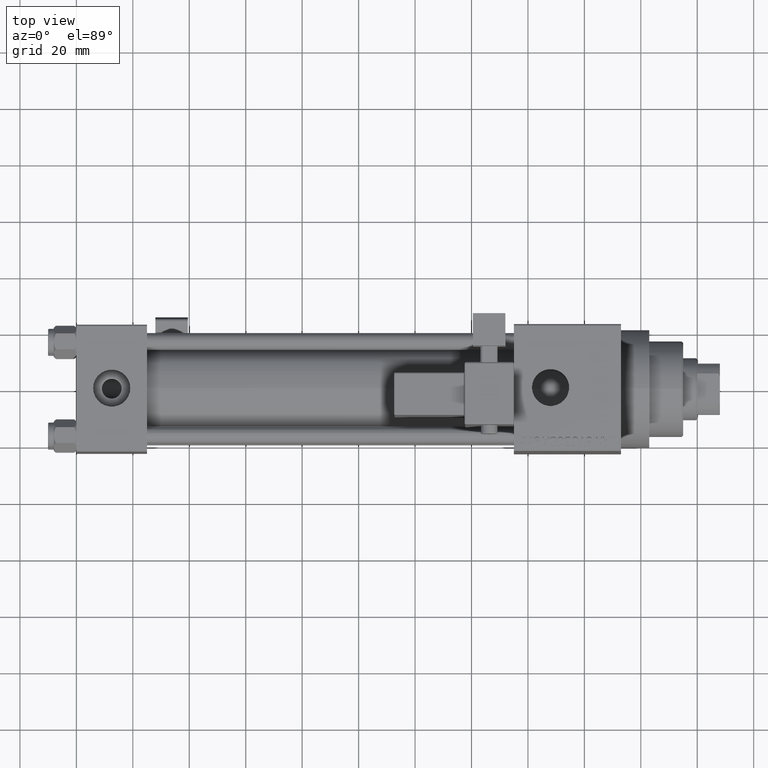
[diagram: clean part render]
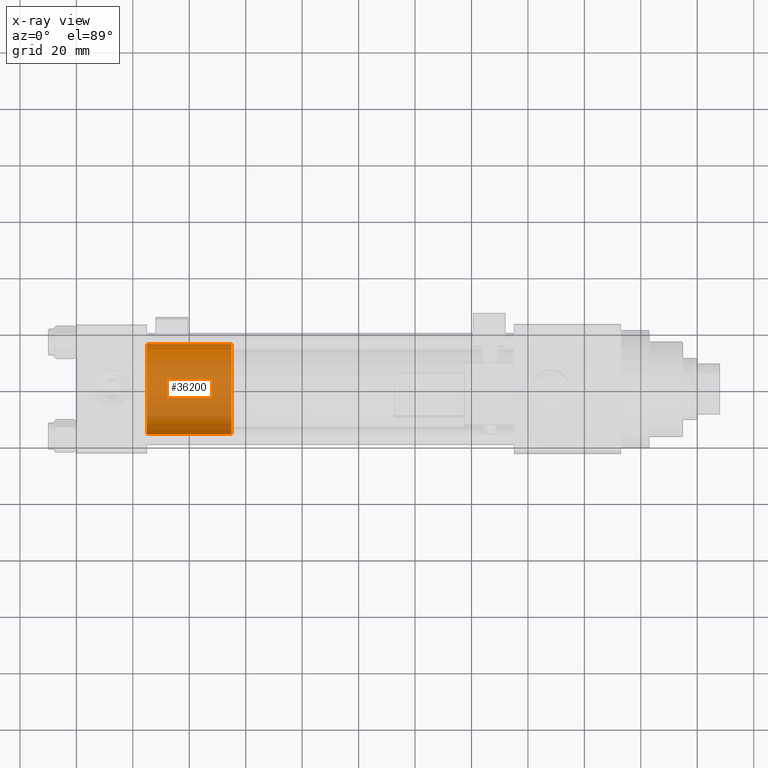
[diagram: x-ray — body ghosted, one internal face saturated and labeled with its STEP entity id]
A machine part, top view, then the same camera in x-ray: the body is ghosted and one INTERNAL B-rep face — a face not visible from any outside direction — is saturated and labeled: STEP entity #36200.
In plain terms, the highlighted cylindrical surface (partial cylindrical patch) has radius 16 mm, axis along (-1, 0, 0).
Its self-contained STEP definition (entity closure, byte-faithful):
#1058 = EDGE_CURVE ( 'NONE', #42176, #14074, #26869, .T. ) ;
#2208 = ORIENTED_EDGE ( 'NONE', *, *, #3503, .T. ) ;
#2711 = CARTESIAN_POINT ( 'NONE',  ( 0.000000000000000000, 0.000000000000000000, 30.00000000000000000 ) ) ;
#3195 = DIRECTION ( 'NONE',  ( 1.000000000000000000, 0.000000000000000000, 0.000000000000000000 ) ) ;
#3503 = EDGE_CURVE ( 'NONE', #37855, #43540, #23887, .T. ) ;
#3663 = VECTOR ( 'NONE', #42149, 1000.000000000000000 ) ;
#6163 = ORIENTED_EDGE ( 'NONE', *, *, #1058, .F. ) ;
#8698 = EDGE_CURVE ( 'NONE', #43540, #14074, #11914, .T. ) ;
#10849 = CIRCLE ( 'NONE', #26003, 16.00000000000000000 ) ;
#11914 = CIRCLE ( 'NONE', #19853, 16.00000000000000000 ) ;
#14074 = VERTEX_POINT ( 'NONE', #16898 ) ;
#14988 = EDGE_LOOP ( 'NONE', ( #20008, #2208, #29254, #6163 ) ) ;
#16898 = CARTESIAN_POINT ( 'NONE',  ( -16.00000000000000000, 0.000000000000000000, 0.000000000000000000 ) ) ;
#16922 = DIRECTION ( 'NONE',  ( 0.000000000000000000, 0.000000000000000000, 1.000000000000000000 ) ) ;
#19468 = AXIS2_PLACEMENT_3D ( 'NONE', #41589, #26567, #30570 ) ;
#19853 = AXIS2_PLACEMENT_3D ( 'NONE', #35911, #16922, #32408 ) ;
#20008 = ORIENTED_EDGE ( 'NONE', *, *, #40789, .F. ) ;
#20137 = DIRECTION ( 'NONE',  ( -0.000000000000000000, -0.000000000000000000, -1.000000000000000000 ) ) ;
#23887 = LINE ( 'NONE', #39154, #42866 ) ;
#26003 = AXIS2_PLACEMENT_3D ( 'NONE', #2711, #41205, #3195 ) ;
#26321 = FACE_OUTER_BOUND ( 'NONE', #14988, .T. ) ;
#26567 = DIRECTION ( 'NONE',  ( -0.000000000000000000, -0.000000000000000000, -1.000000000000000000 ) ) ;
#26869 = LINE ( 'NONE', #37650, #3663 ) ;
#28561 = CARTESIAN_POINT ( 'NONE',  ( 16.00000000000000000, 1.959434878635765131E-15, 30.00000000000000000 ) ) ;
#29254 = ORIENTED_EDGE ( 'NONE', *, *, #8698, .T. ) ;
#30570 = DIRECTION ( 'NONE',  ( -1.000000000000000000, 0.000000000000000000, 0.000000000000000000 ) ) ;
#32408 = DIRECTION ( 'NONE',  ( 1.000000000000000000, 0.000000000000000000, 0.000000000000000000 ) ) ;
#35911 = CARTESIAN_POINT ( 'NONE',  ( 0.000000000000000000, 0.000000000000000000, 0.000000000000000000 ) ) ;
#36200 = ADVANCED_FACE ( 'NONE', ( #26321 ), #48852, .T. ) ;
#36921 = CARTESIAN_POINT ( 'NONE',  ( 16.00000000000000000, 1.959434878635765131E-15, 0.000000000000000000 ) ) ;
#37650 = CARTESIAN_POINT ( 'NONE',  ( -16.00000000000000000, 0.000000000000000000, 30.00000000000000000 ) ) ;
#37855 = VERTEX_POINT ( 'NONE', #28561 ) ;
#39154 = CARTESIAN_POINT ( 'NONE',  ( 16.00000000000000000, 1.959434878635765131E-15, 30.00000000000000000 ) ) ;
#40733 = CARTESIAN_POINT ( 'NONE',  ( -16.00000000000000000, 0.000000000000000000, 30.00000000000000000 ) ) ;
#40789 = EDGE_CURVE ( 'NONE', #37855, #42176, #10849, .T. ) ;
#41205 = DIRECTION ( 'NONE',  ( 0.000000000000000000, 0.000000000000000000, 1.000000000000000000 ) ) ;
#41589 = CARTESIAN_POINT ( 'NONE',  ( 0.000000000000000000, 0.000000000000000000, 30.00000000000000000 ) ) ;
#42149 = DIRECTION ( 'NONE',  ( -0.000000000000000000, -0.000000000000000000, -1.000000000000000000 ) ) ;
#42176 = VERTEX_POINT ( 'NONE', #40733 ) ;
#42866 = VECTOR ( 'NONE', #20137, 1000.000000000000000 ) ;
#43540 = VERTEX_POINT ( 'NONE', #36921 ) ;
#48852 = CYLINDRICAL_SURFACE ( 'NONE', #19468, 16.00000000000000000 ) ;